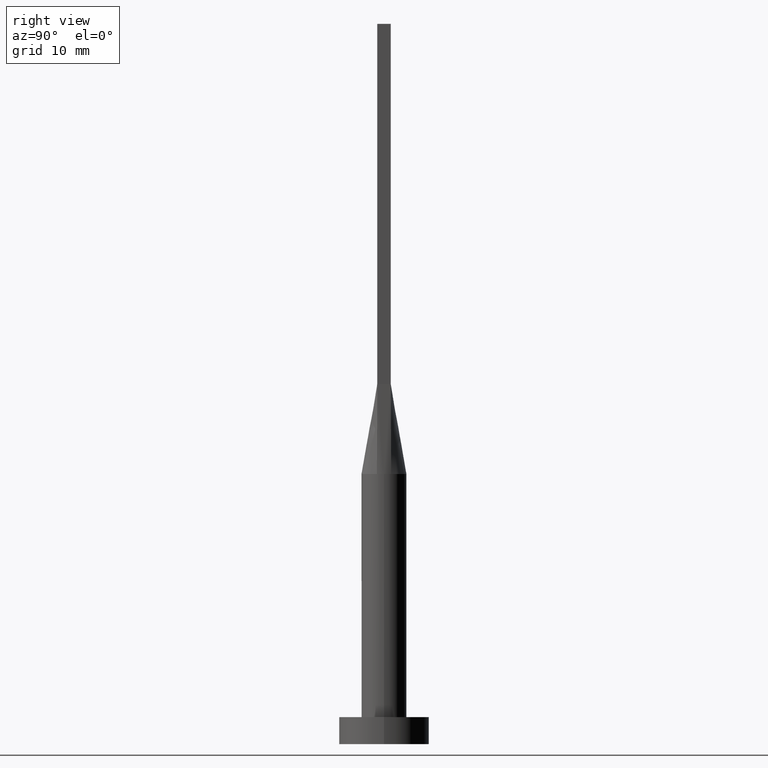
[diagram: clean part render]
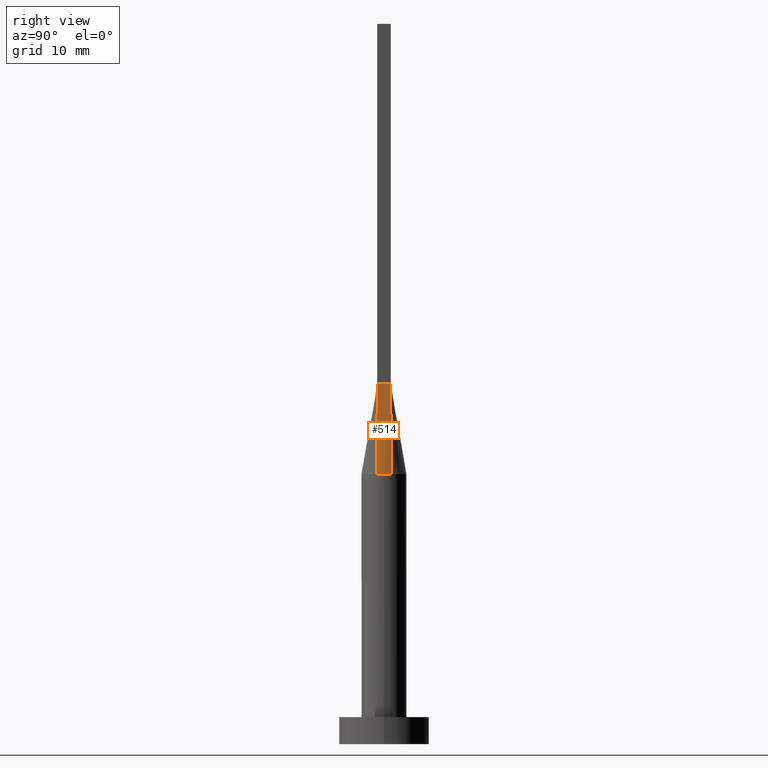
[diagram: same view with one face highlighted and labeled with its STEP entity id]
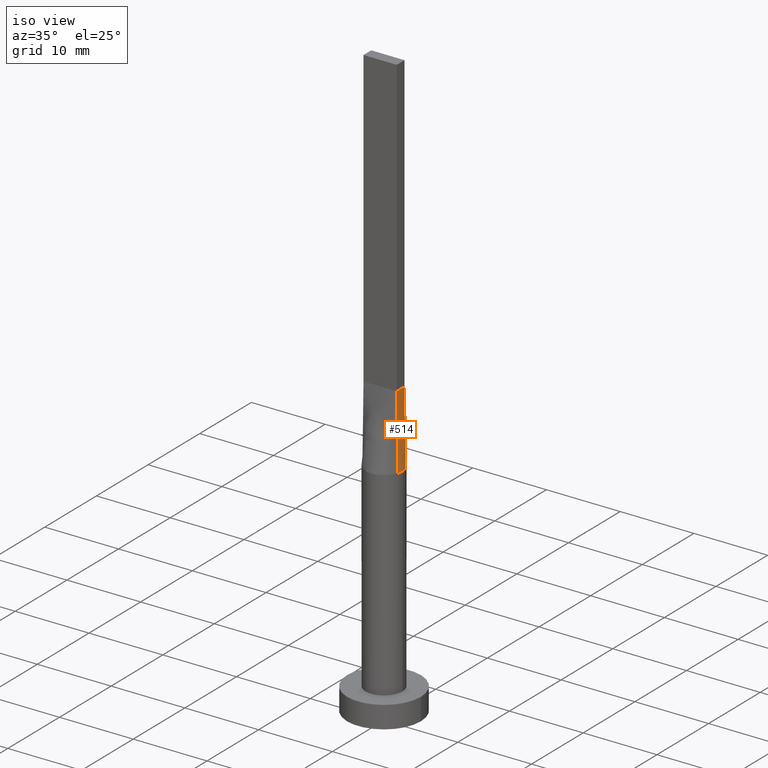
[diagram: same view with one face highlighted and labeled with its STEP entity id]
A machine part, right view. The second image highlights one B-rep face of the part: STEP entity #514.
A second angle (iso view) of the same face is appended — the face is thin or edge-on in the first view.
In plain terms, the highlighted face is a freeform B-spline surface patch.
Its self-contained STEP definition (entity closure, byte-faithful):
#3 = CARTESIAN_POINT ( 'NONE',  ( 2.371798206859841329, -0.7905998626979697796, 30.00000000000000000 ) ) ;
#23 = CARTESIAN_POINT ( 'NONE',  ( 2.371708245126284531, 0.7905694150420949917, 30.00000000000000000 ) ) ;
#25 = ORIENTED_EDGE ( 'NONE', *, *, #356, .F. ) ;
#53 = B_SPLINE_SURFACE_WITH_KNOTS ( 'NONE', 3, 1, ( 
 ( #109, #428 ),
 ( #112, #155 ),
 ( #239, #192 ),
 ( #557, #67 ),
 ( #515, #283 ),
 ( #23, #186 ) ),
 .UNSPECIFIED., .F., .F., .F.,
 ( 4, 2, 4 ),
 ( 2, 2 ),
 ( 0.000000000000000000, 0.5000000000000000000, 1.000000000000000000 ),
 ( 0.000000000000000000, 1.000000000000000000 ),
 .UNSPECIFIED. ) ;
#64 = CIRCLE ( 'NONE', #203, 2.500000000000000000 ) ;
#67 = CARTESIAN_POINT ( 'NONE',  ( 2.249999999999999556, 0.2499999999999999445, 39.99999999999999289 ) ) ;
#92 = CARTESIAN_POINT ( 'NONE',  ( 0.000000000000000000, 0.000000000000000000, 30.00000000000000000 ) ) ;
#93 = DIRECTION ( 'NONE',  ( 0.000000000000000000, 0.000000000000000000, 1.000000000000000000 ) ) ;
#109 = CARTESIAN_POINT ( 'NONE',  ( 2.371708245126284531, -0.7905694150420953248, 30.00000000000000000 ) ) ;
#112 = CARTESIAN_POINT ( 'NONE',  ( 2.455041578459617568, -0.5405694150420953248, 30.00000000000000355 ) ) ;
#130 = ORIENTED_EDGE ( 'NONE', *, *, #278, .T. ) ;
#137 = DIRECTION ( 'NONE',  ( -0.01216982305197525371, -0.004056607683991722904, 0.9999177162851859979 ) ) ;
#146 = LINE ( 'NONE', #281, #406 ) ;
#150 = CARTESIAN_POINT ( 'NONE',  ( 2.499999999999999556, 3.110810548879990207E-17, 30.00000000000000000 ) ) ;
#155 = CARTESIAN_POINT ( 'NONE',  ( 2.250000000000000000, -0.4999999999999998890, 39.99999999999999289 ) ) ;
#168 = LINE ( 'NONE', #501, #234 ) ;
#174 = DIRECTION ( 'NONE',  ( -0.01216982305197521208, 0.004056607683991797497, 0.9999177162851859979 ) ) ;
#186 = CARTESIAN_POINT ( 'NONE',  ( 2.249999999999999556, 0.7500000000000002220, 40.00000000000000000 ) ) ;
#190 = CARTESIAN_POINT ( 'NONE',  ( 2.250000000000000000, -0.7499999999999997780, 40.00000000000000000 ) ) ;
#192 = CARTESIAN_POINT ( 'NONE',  ( 2.249999999999999556, -0.2500000000000000000, 39.99999999999999289 ) ) ;
#199 = AXIS2_PLACEMENT_3D ( 'NONE', #310, #93, #214 ) ;
#203 = AXIS2_PLACEMENT_3D ( 'NONE', #92, #402, #407 ) ;
#204 = VERTEX_POINT ( 'NONE', #421 ) ;
#214 = DIRECTION ( 'NONE',  ( 1.000000000000000000, -4.440892098500626162E-15, 0.000000000000000000 ) ) ;
#224 = ORIENTED_EDGE ( 'NONE', *, *, #375, .T. ) ;
#234 = VECTOR ( 'NONE', #174, 1000.000000000000114 ) ;
#238 = DIRECTION ( 'NONE',  ( -2.891205793294678326E-16, 1.000000000000000000, -0.000000000000000000 ) ) ;
#239 = CARTESIAN_POINT ( 'NONE',  ( 2.499999999999999556, -0.2704627669472993157, 30.00000000000000000 ) ) ;
#259 = ORIENTED_EDGE ( 'NONE', *, *, #573, .F. ) ;
#278 = EDGE_CURVE ( 'NONE', #579, #204, #414, .T. ) ;
#281 = CARTESIAN_POINT ( 'NONE',  ( 2.249999999999999556, 0.7500000000000002220, 40.00000000000000000 ) ) ;
#283 = CARTESIAN_POINT ( 'NONE',  ( 2.249999999999999556, 0.5000000000000000000, 39.99999999999999289 ) ) ;
#293 = ORIENTED_EDGE ( 'NONE', *, *, #565, .T. ) ;
#300 = VERTEX_POINT ( 'NONE', #190 ) ;
#310 = CARTESIAN_POINT ( 'NONE',  ( 0.000000000000000000, 0.000000000000000000, 30.00000000000000000 ) ) ;
#323 = EDGE_LOOP ( 'NONE', ( #293, #224, #130, #25, #259 ) ) ;
#328 = VERTEX_POINT ( 'NONE', #150 ) ;
#351 = CARTESIAN_POINT ( 'NONE',  ( 2.371772892450305648, 0.7905912578404317159, 30.00000000000000000 ) ) ;
#356 = EDGE_CURVE ( 'NONE', #300, #204, #146, .T. ) ;
#363 = CARTESIAN_POINT ( 'NONE',  ( 2.310854122563142266, 0.7702847075210476069, 35.00000000000000000 ) ) ;
#375 = EDGE_CURVE ( 'NONE', #328, #579, #64, .T. ) ;
#402 = DIRECTION ( 'NONE',  ( 0.000000000000000000, 0.000000000000000000, 1.000000000000000000 ) ) ;
#406 = VECTOR ( 'NONE', #238, 1000.000000000000000 ) ;
#407 = DIRECTION ( 'NONE',  ( 1.000000000000000000, 0.000000000000000000, 0.000000000000000000 ) ) ;
#414 = LINE ( 'NONE', #363, #550 ) ;
#421 = CARTESIAN_POINT ( 'NONE',  ( 2.249999999999999556, 0.7500000000000002220, 40.00000000000000000 ) ) ;
#428 = CARTESIAN_POINT ( 'NONE',  ( 2.250000000000000000, -0.7499999999999997780, 40.00000000000000000 ) ) ;
#499 = FACE_OUTER_BOUND ( 'NONE', #323, .T. ) ;
#501 = CARTESIAN_POINT ( 'NONE',  ( 2.310854122563142266, -0.7702847075210476069, 35.00000000000000000 ) ) ;
#514 = ADVANCED_FACE ( 'NONE', ( #499 ), #53, .T. ) ;
#515 = CARTESIAN_POINT ( 'NONE',  ( 2.455041578459617568, 0.5405694150420948807, 30.00000000000000355 ) ) ;
#530 = CIRCLE ( 'NONE', #199, 2.500000000000000000 ) ;
#550 = VECTOR ( 'NONE', #137, 1000.000000000000114 ) ;
#557 = CARTESIAN_POINT ( 'NONE',  ( 2.499999999999999112, 0.2704627669472988161, 30.00000000000000000 ) ) ;
#565 = EDGE_CURVE ( 'NONE', #572, #328, #530, .T. ) ;
#572 = VERTEX_POINT ( 'NONE', #3 ) ;
#573 = EDGE_CURVE ( 'NONE', #572, #300, #168, .T. ) ;
#579 = VERTEX_POINT ( 'NONE', #351 ) ;